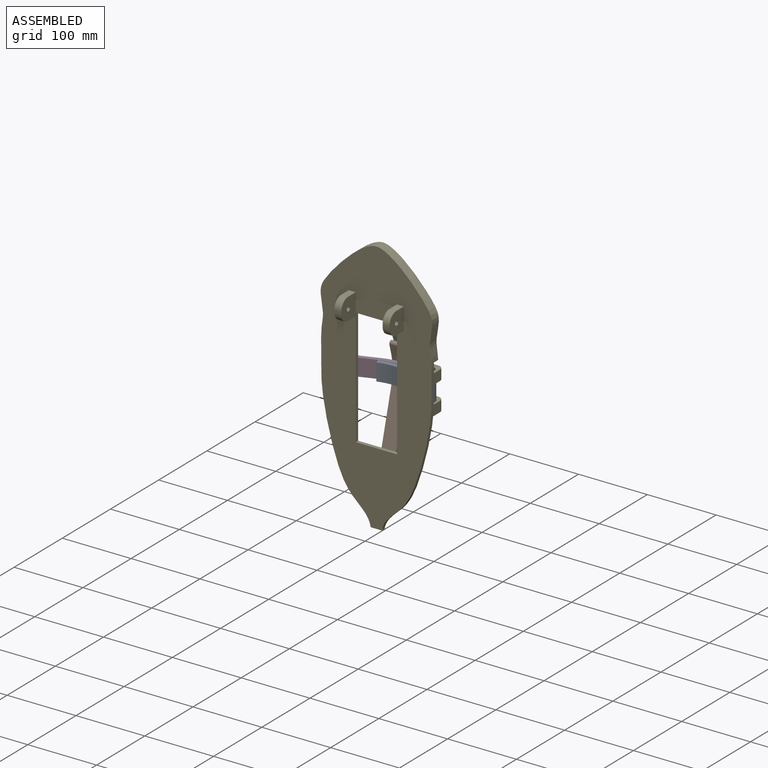
[diagram: assembled view]
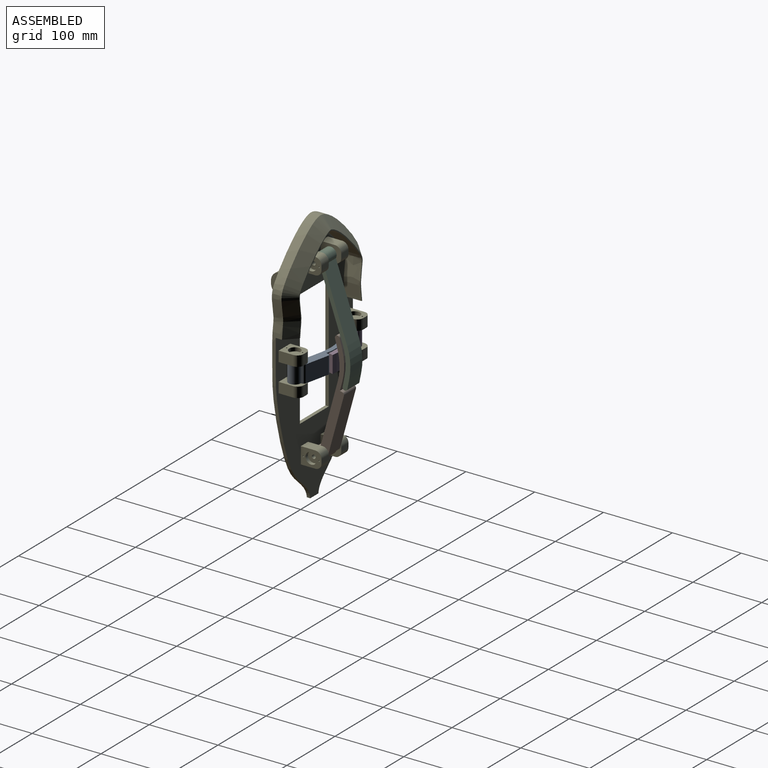
[diagram: assembled view, second angle]
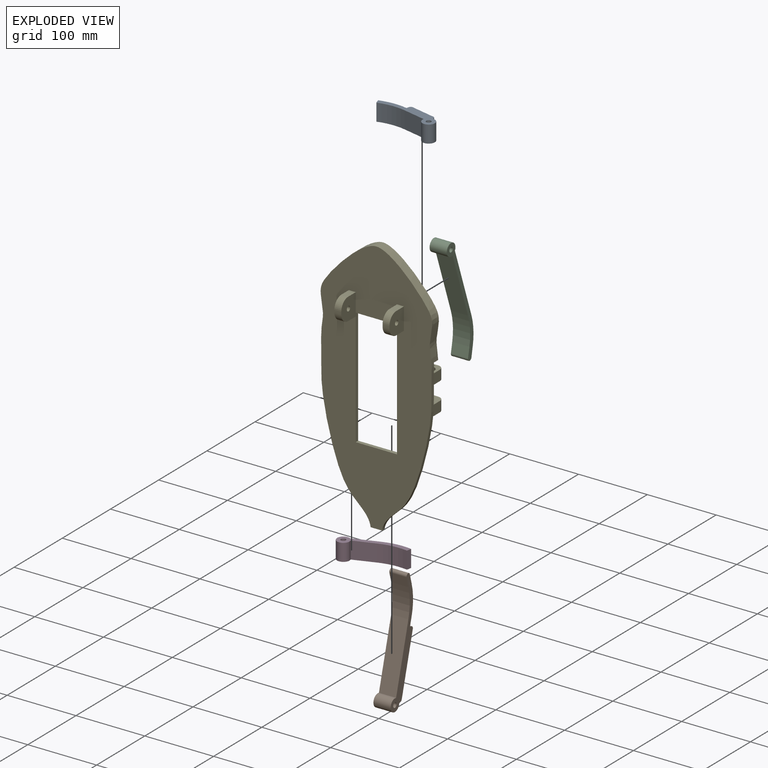
[diagram: exploded view]
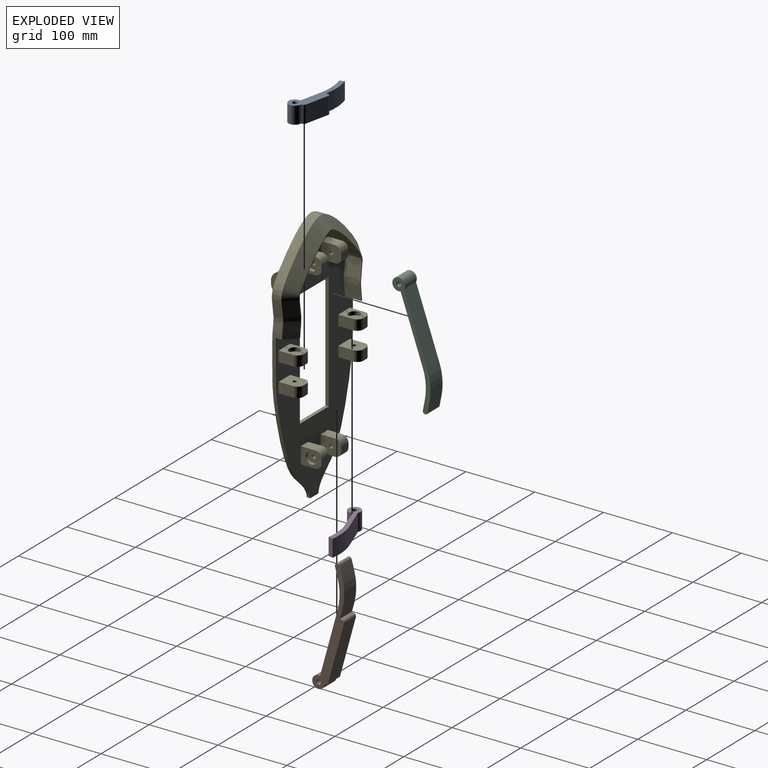
[diagram: exploded view, second angle]
ASSEMBLY  parts=5 mates=4
PART A: 14 faces, bbox 84x25x48.5 mm
  f0: cylinder r=9mm len=25mm, axis (0,1,0), area 1112.1mm2, adj f1,f3,f4,f6
  f1: plane 28.46x25mm, normal (0.51,0,-0.86), area 826.5mm2, adj f0,f3,f4,f10
  f2: plane 25x6.98mm, normal (1,0,0), area 174.5mm2, adj f3,f4,f10,f11
  f3: plane 84x48.48mm, normal (0,-1,0), area 992.3mm2, adj f0,f1,f2,f5,f6,f7,f8,f9
  f4: plane 84x48.48mm, normal (0,1,0), area 992.3mm2, adj f0,f1,f2,f5,f6,f7,f8,f9
  f5: cylinder r=3.5mm len=25mm, axis (0,-1,0), area 549.8mm2, adj f3,f4
  f6: plane 25x0.41mm, normal (0,0,-1), area 10.2mm2, adj f0,f3,f4,f9
  f7: plane 25x3.01mm, normal (0.86,0,0.51), area 87.5mm2, adj f3,f4,f11,f12
  f8: plane 31.07x25mm, normal (-0.51,0,0.86), area 902.2mm2, adj f3,f4,f12,f13
  f9: plane 25x2.71mm, normal (-1,0,0), area 67.8mm2, adj f3,f4,f6,f13
  f10: cylinder r=80mm len=38.79mm, axis (0,-1,0), area 1019.7mm2, adj f1,f2,f3,f4
  f11: cylinder r=80mm len=38.74mm, axis (0,-1,0), area 1017.9mm2, adj f2,f3,f4,f7
  f12: cylinder r=3.5mm len=25mm, axis (0,-1,0), area 137.4mm2, adj f3,f4,f7,f8
  f13: cylinder r=3.5mm len=25mm, axis (0,-1,0), area 90.7mm2, adj f3,f4,f8,f9
PART B: 19 faces, bbox 159x27x81 mm
  f0: plane 25x11.3mm, normal (-0.51,0,0.86), area 328.3mm2, adj f5,f6,f9,f13
  f1: cylinder r=9mm len=25mm, axis (0,1,0), area 1112.1mm2, adj f2,f5,f6,f8
  f2: plane 83.42x49.3mm, normal (0.51,0,-0.86), area 2422.5mm2, adj f1,f5,f6,f12
  f3: plane 25x14.63mm, normal (0,0,-1), area 365.8mm2, adj f5,f6,f12,f14
  f4: plane 25x14.63mm, normal (0,0,1), area 365.8mm2, adj f5,f6,f13,f14
  f5: plane 159x81mm, normal (0,-1,0), area 1865.3mm2, adj f0,f1,f2,f3,f4,f7,f8,f9
  f6: plane 159x81mm, normal (0,1,0), area 1867.1mm2, adj f0,f1,f2,f3,f4,f7,f8,f9
  f7: cylinder r=3.5mm len=25mm, axis (0,-1,0), area 549.8mm2, adj f5,f6
  f8: plane 25x0.41mm, normal (0,0,-1), area 10.2mm2, adj f1,f5,f6,f11
  f9: plane 25x3.01mm, normal (0.86,0,0.51), area 87.5mm2, adj f0,f5,f6,f15
  f10: plane 74.67x44.12mm, normal (-0.51,0,0.86), area 2168.4mm2, adj f5,f6,f15,f16
  f11: plane 25x2.71mm, normal (-1,0,0), area 67.8mm2, adj f5,f6,f8,f16
  f12: cylinder r=80mm len=40.7mm, axis (0,-1,0), area 1067.4mm2, adj f2,f3,f5,f6
  f13: cylinder r=80mm len=40.7mm, axis (0,1,0), area 1067.4mm2, adj f0,f4,f5,f6
  f14: cylinder r=3.5mm len=25mm, axis (0,1,0), area 274.9mm2, adj f3,f4,f5,f6
  f15: cylinder r=3.5mm len=25mm, axis (0,-1,0), area 137.4mm2, adj f5,f6,f9,f10
  f16: cylinder r=3.5mm len=25mm, axis (0,-1,0), area 90.7mm2, adj f5,f6,f10,f11
  f17: cylinder r=0.75mm len=2mm, axis (0,1,0), area 9.4mm2, adj f5,f18
  f18: plane 1.5x1.5mm, normal (0,-1,0), area 1.8mm2, adj f17
PART C: 11 faces, bbox 159x25x81 mm
  f0: plane 88.48x52.29mm, normal (-0.51,0,0.86), area 2569.4mm2, adj f1,f5,f6,f9
  f1: cylinder r=9mm len=25mm, axis (0,1,0), area 1248.6mm2, adj f0,f2,f5,f6
  f2: plane 83.42x49.3mm, normal (0.51,0,-0.86), area 2422.5mm2, adj f1,f5,f6,f8
  f3: plane 25x14.63mm, normal (0,0,-1), area 365.8mm2, adj f5,f6,f8,f10
  f4: plane 25x14.63mm, normal (0,0,1), area 365.8mm2, adj f5,f6,f9,f10
  f5: plane 159x81mm, normal (0,-1,0), area 1221.6mm2, adj f0,f1,f2,f3,f4,f7,f8,f9
  f6: plane 159x81mm, normal (0,1,0), area 1221.6mm2, adj f0,f1,f2,f3,f4,f7,f8,f9
  f7: cylinder r=3.5mm len=25mm, axis (0,-1,0), area 549.8mm2, adj f5,f6
  f8: cylinder r=80mm len=40.7mm, axis (0,-1,0), area 1067.4mm2, adj f2,f3,f5,f6
  f9: cylinder r=80mm len=40.7mm, axis (0,1,0), area 1067.4mm2, adj f0,f4,f5,f6
  f10: cylinder r=3.5mm len=25mm, axis (0,1,0), area 274.9mm2, adj f3,f4,f5,f6
PART D: 9 faces, bbox 84x25x48.5 mm
  f0: plane 33.52x25mm, normal (-0.51,0,0.86), area 973.4mm2, adj f1,f4,f5,f8
  f1: cylinder r=9mm len=25mm, axis (0,1,0), area 1248.6mm2, adj f0,f2,f4,f5
  f2: plane 28.46x25mm, normal (0.51,0,-0.86), area 826.5mm2, adj f1,f4,f5,f7
  f3: plane 25x7mm, normal (1,0,0), area 175mm2, adj f4,f5,f7,f8
  f4: plane 84x48.5mm, normal (0,-1,0), area 701.9mm2, adj f0,f1,f2,f3,f6,f7,f8
  f5: plane 84x48.5mm, normal (0,1,0), area 701.9mm2, adj f0,f1,f2,f3,f6,f7,f8
  f6: cylinder r=3.5mm len=25mm, axis (0,-1,0), area 549.8mm2, adj f4,f5
  f7: cylinder r=80mm len=38.79mm, axis (0,-1,0), area 1019.7mm2, adj f2,f3,f4,f5
  f8: cylinder r=80mm len=38.79mm, axis (0,1,0), area 1019.7mm2, adj f0,f3,f4,f5
PART E: 140 faces, bbox 168.2x66x371.9 mm
  f0: plane 370.92x167.14mm, normal (0,-1,0), area 35508.2mm2, adj f10,f11,f12,f13,f14,f115,f116,f117
  f1: plane 354.51x163.37mm, normal (0,1,0), area 28051.8mm2, adj f10,f11,f12,f13,f14,f15,f16,f17
  f2: cylinder r=2.75mm len=9.7mm, axis (0,0,-1), area 167.6mm2, adj f55,f109
  f3: cylinder r=2.75mm len=9.7mm, axis (0,0,-1), area 167.6mm2, adj f45,f103
  f4: cylinder r=2.75mm len=9.7mm, axis (0,0,-1), area 167.6mm2, adj f48,f97
  f5: cylinder r=2.75mm len=9.7mm, axis (0,0,-1), area 167.6mm2, adj f58,f91
  f6: cylinder r=2.75mm len=9.7mm, axis (1,0,0), area 167.6mm2, adj f20,f85
  f7: cylinder r=2.75mm len=9.7mm, axis (1,0,0), area 167.6mm2, adj f17,f83
  f8: cylinder r=2.75mm len=9.7mm, axis (1,0,0), area 167.6mm2, adj f27,f77
  f9: cylinder r=2.75mm len=9.7mm, axis (1,0,0), area 167.6mm2, adj f32,f71
  f10: extruded ~180x80.95mm, area 2642.8mm2, adj f0,f1,f11,f14,f133,f139
  f11: extruded ~180x80.95mm, area 2642.8mm2, adj f0,f1,f10,f12,f136,f138
  f12: extruded ~190.92x71.65mm, area 1049.3mm2, adj f0,f1,f11,f13
  f13: plane 16.95x5mm, normal (0,0,-1), area 84.8mm2, adj f0,f1,f12,f14
  f14: extruded ~190.92x71.65mm, area 1049.3mm2, adj f0,f1,f10,f13
  f15: plane 30x24mm, normal (1,0,0), area 466.3mm2, adj f1,f16,f18,f19,f41,f42,f84,f87
  f16: plane 21.07x15mm, normal (0,0,1), area 316mm2, adj f1,f15,f17,f41
  f17: plane 30x24mm, normal (-1,0,0), area 662mm2, adj f1,f7,f16,f18,f19,f41,f42
  f18: plane 21.07x15mm, normal (0,0,-1), area 316mm2, adj f1,f15,f17,f42
  f19: plane 15x6.14mm, normal (0,1,0), area 92mm2, adj f15,f17,f41,f42
  f20: plane 30x24mm, normal (1,0,0), area 662mm2, adj f1,f6,f21,f23,f24,f39,f40
  f21: plane 21.07x15mm, normal (0,0,1), area 316mm2, adj f1,f20,f22,f39
  f22: plane 30x24mm, normal (-1,0,0), area 471.9mm2, adj f1,f21,f23,f24,f39,f40,f86
  f23: plane 21.07x15mm, normal (0,0,-1), area 316mm2, adj f1,f20,f22,f40
  f24: plane 15x6.14mm, normal (0,1,0), area 92mm2, adj f20,f22,f39,f40
  f25: plane 30x24mm, normal (-1,0,0), area 466.3mm2, adj f1,f26,f28,f29,f37,f38,f78,f79
  f26: plane 21.07x15mm, normal (0,0,-1), area 316mm2, adj f1,f25,f27,f37
  f27: plane 30x24mm, normal (1,0,0), area 662mm2, adj f1,f8,f26,f28,f29,f37,f38
  f28: plane 21.07x15mm, normal (0,0,1), area 316mm2, adj f1,f25,f27,f38
  f29: plane 15x6.14mm, normal (0,1,0), area 92mm2, adj f25,f27,f37,f38
  f30: plane 30x24mm, normal (1,0,0), area 466.3mm2, adj f1,f31,f33,f34,f35,f36,f72,f73
  f31: plane 21.07x15mm, normal (0,0,1), area 316mm2, adj f1,f30,f32,f35
  f32: plane 30x24mm, normal (-1,0,0), area 662mm2, adj f1,f9,f31,f33,f34,f35,f36
  f33: plane 21.07x15mm, normal (0,0,-1), area 316mm2, adj f1,f30,f32,f36
  f34: plane 15x6.14mm, normal (0,1,0), area 92mm2, adj f30,f32,f35,f36
  f35: cylinder r=8.93mm len=15mm, axis (1,0,0), area 210.5mm2, adj f30,f31,f32,f34
  f36: cylinder r=8.93mm len=15mm, axis (-1,0,0), area 210.5mm2, adj f30,f32,f33,f34
  f37: cylinder r=8.93mm len=15mm, axis (-1,0,0), area 210.5mm2, adj f25,f26,f27,f29
  f38: cylinder r=8.93mm len=15mm, axis (1,0,0), area 210.5mm2, adj f25,f27,f28,f29
  f39: cylinder r=8.93mm len=15mm, axis (1,0,0), area 210.5mm2, adj f20,f21,f22,f24
  f40: cylinder r=8.93mm len=15mm, axis (-1,0,0), area 210.5mm2, adj f20,f22,f23,f24
  f41: cylinder r=8.93mm len=15mm, axis (1,0,0), area 210.5mm2, adj f15,f16,f17,f19
  f42: cylinder r=8.93mm len=15mm, axis (-1,0,0), area 210.5mm2, adj f15,f17,f18,f19
  f43: plane 30x24mm, normal (0,0,1), area 466.3mm2, adj f1,f44,f46,f47,f69,f70,f104,f105
  f44: plane 21.07x15mm, normal (1,0,0), area 316mm2, adj f1,f43,f45,f69
  f45: plane 30x24mm, normal (0,0,-1), area 662mm2, adj f1,f3,f44,f46,f47,f69,f70
  f46: plane 21.07x15mm, normal (-1,0,0), area 316mm2, adj f1,f43,f45,f70
  f47: plane 15x6.14mm, normal (0,1,0), area 92mm2, adj f43,f45,f69,f70
  f48: plane 30x24mm, normal (0,0,1), area 662mm2, adj f1,f4,f49,f51,f52,f67,f68
  f49: plane 21.07x15mm, normal (1,0,0), area 316mm2, adj f1,f48,f50,f67
  f50: plane 30x24mm, normal (0,0,-1), area 466.3mm2, adj f1,f49,f51,f52,f67,f68,f98,f99
  f51: plane 21.07x15mm, normal (-1,0,0), area 316mm2, adj f1,f48,f50,f68
  f52: plane 15x6.14mm, normal (0,1,0), area 92mm2, adj f48,f50,f67,f68
  f53: plane 30x24mm, normal (0,0,1), area 466.3mm2, adj f1,f54,f56,f57,f65,f66,f110,f111
  f54: plane 21.07x15mm, normal (1,0,0), area 316mm2, adj f1,f53,f55,f65
  f55: plane 30x24mm, normal (0,0,-1), area 662mm2, adj f1,f2,f54,f56,f57,f65,f66
  f56: plane 21.07x15mm, normal (-1,0,0), area 316mm2, adj f1,f53,f55,f66
  f57: plane 15x6.14mm, normal (0,1,0), area 92mm2, adj f53,f55,f65,f66
  f58: plane 30x24mm, normal (0,0,1), area 662mm2, adj f1,f5,f59,f61,f62,f63,f64
  f59: plane 21.07x15mm, normal (1,0,0), area 316mm2, adj f1,f58,f60,f63
  f60: plane 30x24mm, normal (0,0,-1), area 466.3mm2, adj f1,f59,f61,f62,f63,f64,f92,f93
  f61: plane 21.07x15mm, normal (-1,0,0), area 316mm2, adj f1,f58,f60,f64
  f62: plane 15x6.14mm, normal (0,1,0), area 92mm2, adj f58,f60,f63,f64
  f63: cylinder r=8.93mm len=15mm, axis (0,0,1), area 210.5mm2, adj f58,f59,f60,f62
  f64: cylinder r=8.93mm len=15mm, axis (0,0,-1), area 210.5mm2, adj f58,f60,f61,f62
  f65: cylinder r=8.93mm len=15mm, axis (0,0,1), area 210.5mm2, adj f53,f54,f55,f57
  f66: cylinder r=8.93mm len=15mm, axis (0,0,-1), area 210.5mm2, adj f53,f55,f56,f57
  f67: cylinder r=8.93mm len=15mm, axis (0,0,1), area 210.5mm2, adj f48,f49,f50,f52
  f68: cylinder r=8.93mm len=15mm, axis (0,0,-1), area 210.5mm2, adj f48,f50,f51,f52
  f69: cylinder r=8.93mm len=15mm, axis (0,0,1), area 210.5mm2, adj f43,f44,f45,f47
  f70: cylinder r=8.93mm len=15mm, axis (0,0,-1), area 210.5mm2, adj f43,f45,f46,f47
  f71: plane 16.5x16.5mm, normal (1,0,0), area 190.1mm2, adj f9,f72
  f72: cylinder r=8.25mm len=16.5mm, axis (1,0,0), area 274.7mm2, adj f30,f71
  f73: cylinder r=0.95mm len=7mm, axis (1,0,0), area 41.8mm2, adj f30,f74
  f74: plane 1.9x1.9mm, normal (1,0,0), area 2.8mm2, adj f73
  f75: cylinder r=0.95mm len=7mm, axis (1,0,0), area 41.8mm2, adj f30,f76
  f76: plane 1.9x1.9mm, normal (1,0,0), area 2.8mm2, adj f75
  f77: plane 16.5x16.5mm, normal (-1,0,0), area 190.1mm2, adj f8,f78
  f78: cylinder r=8.25mm len=16.5mm, axis (-1,0,0), area 274.7mm2, adj f25,f77
  f79: cylinder r=0.95mm len=7mm, axis (-1,0,0), area 41.8mm2, adj f25,f80
  f80: plane 1.9x1.9mm, normal (-1,0,0), area 2.8mm2, adj f79
  f81: cylinder r=0.95mm len=7mm, axis (-1,0,0), area 41.8mm2, adj f25,f82
  f82: plane 1.9x1.9mm, normal (-1,0,0), area 2.8mm2, adj f81
  f83: plane 16.5x16.5mm, normal (1,0,0), area 190.1mm2, adj f7,f84
  f84: cylinder r=8.25mm len=16.5mm, axis (1,0,0), area 274.7mm2, adj f15,f83
  f85: plane 16.5x16.5mm, normal (-1,0,0), area 190.1mm2, adj f6,f86
  f86: cylinder r=8.25mm len=16.5mm, axis (-1,0,0), area 274.7mm2, adj f22,f85
  f87: cylinder r=0.95mm len=7mm, axis (1,0,0), area 41.8mm2, adj f15,f88
  f88: plane 1.9x1.9mm, normal (1,0,0), area 2.8mm2, adj f87
  f89: cylinder r=0.95mm len=7mm, axis (1,0,0), area 41.8mm2, adj f15,f90
  f90: plane 1.9x1.9mm, normal (1,0,0), area 2.8mm2, adj f89
  f91: plane 16.5x16.5mm, normal (0,0,-1), area 190.1mm2, adj f5,f92
  f92: cylinder r=8.25mm len=16.5mm, axis (0,0,-1), area 274.7mm2, adj f60,f91
  f93: cylinder r=0.95mm len=5.3mm, axis (0,0,-1), area 31.6mm2, adj f60,f94
  f94: plane 1.9x1.9mm, normal (0,0,-1), area 2.8mm2, adj f93
  f95: cylinder r=0.95mm len=5.3mm, axis (0,0,-1), area 31.6mm2, adj f60,f96
  f96: plane 1.9x1.9mm, normal (0,0,-1), area 2.8mm2, adj f95
  f97: plane 16.5x16.5mm, normal (0,0,-1), area 190.1mm2, adj f4,f98
  f98: cylinder r=8.25mm len=16.5mm, axis (0,0,-1), area 274.7mm2, adj f50,f97
  f99: cylinder r=0.95mm len=5.3mm, axis (0,0,-1), area 31.6mm2, adj f50,f100
  f100: plane 1.9x1.9mm, normal (0,0,-1), area 2.8mm2, adj f99
  f101: cylinder r=0.95mm len=5.3mm, axis (0,0,-1), area 31.6mm2, adj f50,f102
  f102: plane 1.9x1.9mm, normal (0,0,-1), area 2.8mm2, adj f101
  f103: plane 16.5x16.5mm, normal (0,0,1), area 190.1mm2, adj f3,f104
  f104: cylinder r=8.25mm len=16.5mm, axis (0,0,1), area 274.7mm2, adj f43,f103
  f105: cylinder r=0.95mm len=5.3mm, axis (0,0,1), area 31.6mm2, adj f43,f106
  f106: plane 1.9x1.9mm, normal (0,0,1), area 2.8mm2, adj f105
  f107: cylinder r=0.95mm len=5.3mm, axis (0,0,1), area 31.6mm2, adj f43,f108
  f108: plane 1.9x1.9mm, normal (0,0,1), area 2.8mm2, adj f107
  f109: plane 16.5x16.5mm, normal (0,0,1), area 190.1mm2, adj f2,f110
  f110: cylinder r=8.25mm len=16.5mm, axis (0,0,1), area 274.7mm2, adj f53,f109
  f111: cylinder r=0.95mm len=5.3mm, axis (0,0,1), area 31.6mm2, adj f53,f112
  f112: plane 1.9x1.9mm, normal (0,0,1), area 2.8mm2, adj f111
  f113: cylinder r=0.95mm len=5.3mm, axis (0,0,1), area 31.6mm2, adj f53,f114
  f114: plane 1.9x1.9mm, normal (0,0,1), area 2.8mm2, adj f113
  f115: plane 15.51x10mm, normal (0,0,1), area 155.1mm2, adj f0,f116,f118,f128
  f116: plane 32x30mm, normal (-1,0,0), area 831.5mm2, adj f0,f115,f117,f119,f127,f128,f130
  f117: plane 15.51x10mm, normal (0,0,-1), area 155.1mm2, adj f0,f116,f118,f127
  f118: plane 197x35mm, normal (1,0,0), area 1681.5mm2, adj f0,f1,f115,f117,f119,f127,f128,f130
  f119: plane 10x3.03mm, normal (0,-1,0), area 30.3mm2, adj f116,f118,f127,f128
  f120: plane 32x30mm, normal (1,0,0), area 831.5mm2, adj f0,f121,f123,f124,f125,f126,f129
  f121: plane 15.51x10mm, normal (0,0,1), area 155.1mm2, adj f0,f120,f122,f125
  f122: plane 197x35mm, normal (-1,0,0), area 1681.5mm2, adj f0,f1,f121,f123,f124,f125,f126,f129
  f123: plane 15.51x10mm, normal (0,0,-1), area 155.1mm2, adj f0,f120,f122,f126
  f124: plane 10x3.03mm, normal (0,-1,0), area 30.3mm2, adj f120,f122,f125,f126
  f125: cylinder r=14.49mm len=14.49mm, axis (1,0,0), area 227.5mm2, adj f120,f121,f122,f124
  f126: cylinder r=14.49mm len=14.49mm, axis (-1,0,0), area 227.5mm2, adj f120,f122,f123,f124
  f127: cylinder r=14.49mm len=14.49mm, axis (-1,0,0), area 227.5mm2, adj f116,f117,f118,f119
  f128: cylinder r=14.49mm len=14.49mm, axis (1,0,0), area 227.5mm2, adj f115,f116,f118,f119
  f129: cylinder r=3.5mm len=10mm, axis (-1,0,0), area 219.9mm2, adj f120,f122
  f130: cylinder r=3.5mm len=10mm, axis (-1,0,0), area 219.9mm2, adj f116,f118
  f131: plane 60x5mm, normal (0,0,-1), area 300mm2, adj f0,f1,f118,f122
  f132: plane 60x5mm, normal (0,0,1), area 300mm2, adj f0,f1,f118,f122
  f133: plane 24.03x16.45mm, normal (0,0,-1), area 281.4mm2, adj f1,f10,f134,f137,f139
  f134: extruded ~116.62x64.57mm, area 3513.5mm2, adj f1,f133,f135,f137
  f135: extruded ~116.62x64.57mm, area 3513.5mm2, adj f1,f134,f136,f137
  f136: plane 24.03x16.45mm, normal (0,0,-1), area 281.4mm2, adj f1,f11,f135,f137,f138
  f137: plane 133.05x119.06mm, normal (0,1,0), area 400.1mm2, adj f133,f134,f135,f136,f138,f139
  f138: bspline ~133.73x81.06mm, area 3398mm2, adj f11,f136,f137,f139
  f139: bspline ~133.73x81.06mm, area 3395.4mm2, adj f10,f133,f137,f138
PLACE A rot(axis=(0.11,-0.7,-0.7),167.2deg) t=(62,15,12)mm
PLACE B rot(axis=(-0.52,-0.52,-0.68),111.6deg) t=(13,15,-127)mm
PLACE C rot(axis=(-0.61,0.61,0.5),126.7deg) t=(-12,15,127)mm
PLACE D rot(axis=(-0.99,0.09,-0.09),90.5deg) t=(-62,15,-13)mm
PLACE E at identity fixed
MATE revolute B.f1 <-> E.f78  axis (1,0,0) through (13,15,-127)mm
MATE revolute A.f0 <-> E.f98  axis (0,0,-1) through (62,15,-13)mm
MATE revolute D.f6 <-> E.f92  axis (0,0,-1) through (-62,15,-13)mm
MATE revolute C.f1 <-> E.f86  axis (1,0,0) through (13,15,127)mm
